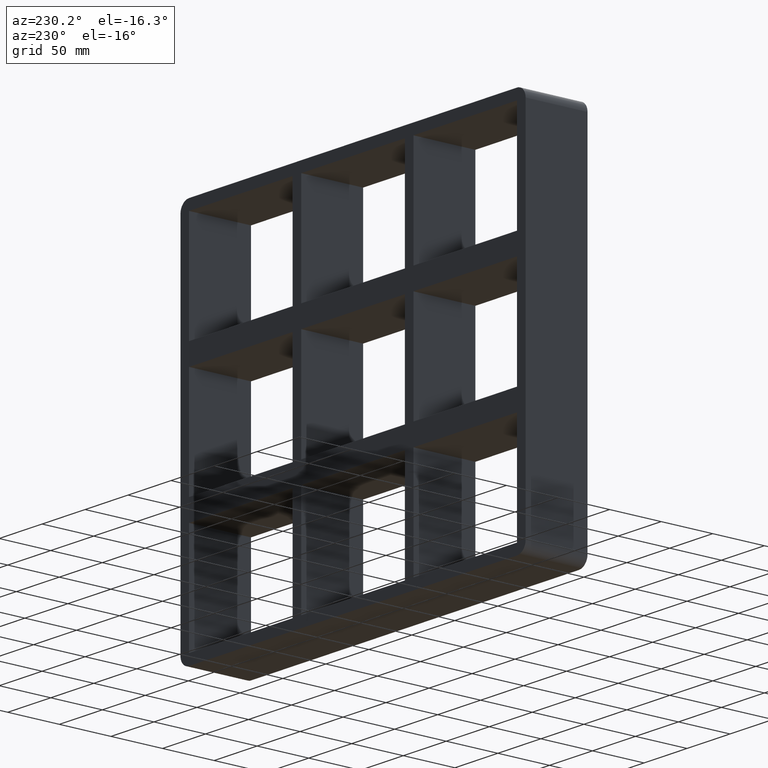
[diagram: clean part render]
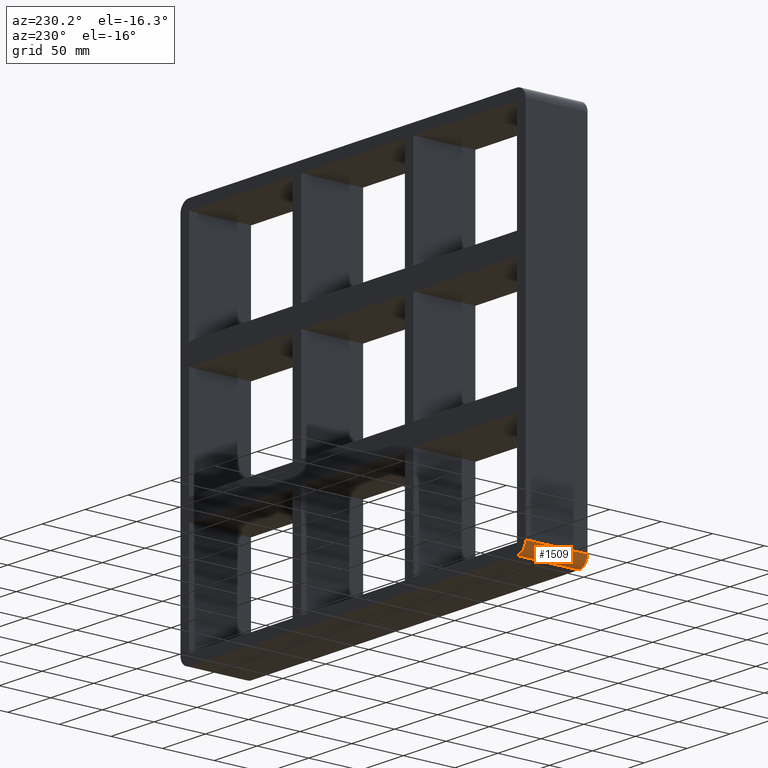
[diagram: same view with one face highlighted and labeled with its STEP entity id]
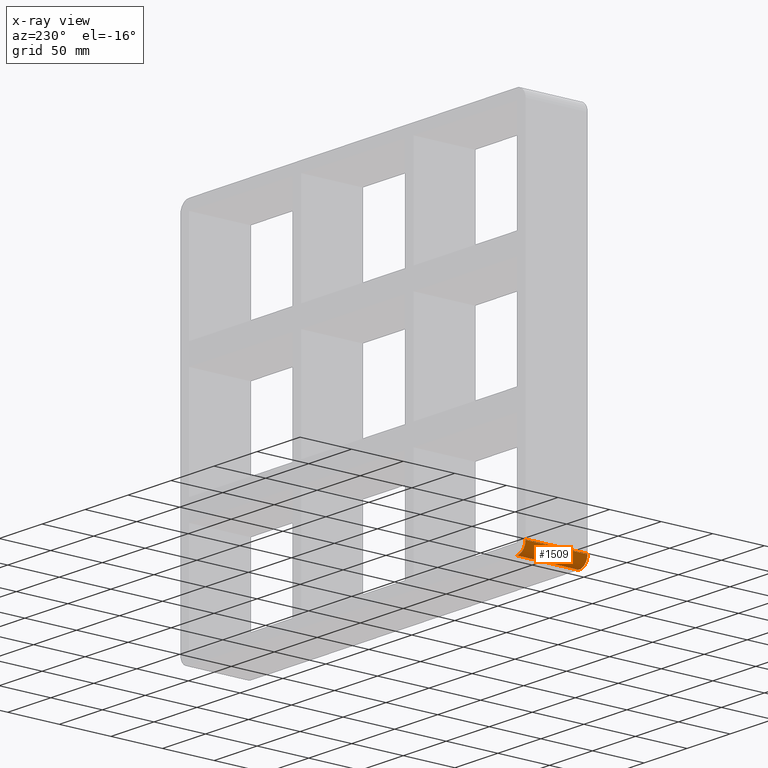
[diagram: x-ray of the same camera — body ghosted, the highlighted face saturated]
A machine part, auxiliary view. The second image highlights one B-rep face of the part: STEP entity #1509.
The next image is the same camera in x-ray: the body ghosted, the highlighted face saturated — about 0% of this face is hidden behind the body in this view.
In plain terms, the highlighted cylindrical surface (edge-blend (fillet) strip) has radius 10 mm, axis along (0, 1, 0).
Its self-contained STEP definition (entity closure, byte-faithful):
#572=CARTESIAN_POINT('',(-190.75000000000006,57.0,-181.50000000000003));
#573=VERTEX_POINT('',#572);
#580=CARTESIAN_POINT('',(-200.75000000000006,57.0,-171.50000000000003));
#581=VERTEX_POINT('',#580);
#582=CARTESIAN_POINT('',(-190.75000000000006,57.0,-171.50000000000003));
#583=DIRECTION('',(0.0,-1.0,0.0));
#584=DIRECTION('',(-0.707106781186547,0.0,-0.707106781186547));
#585=AXIS2_PLACEMENT_3D('',#582,#583,#584);
#586=CIRCLE('',#585,9.999999999999998);
#587=EDGE_CURVE('',#581,#573,#586,.T.);
#1036=CARTESIAN_POINT('',(-200.75000000000006,-3.0,-171.50000000000003));
#1037=VERTEX_POINT('',#1036);
#1044=CARTESIAN_POINT('',(-190.75000000000006,-3.0,-181.50000000000003));
#1045=VERTEX_POINT('',#1044);
#1046=CARTESIAN_POINT('',(-190.75000000000006,-3.0,-171.50000000000003));
#1047=DIRECTION('',(0.0,1.0,0.0));
#1048=DIRECTION('',(-0.707106781186547,0.0,-0.707106781186547));
#1049=AXIS2_PLACEMENT_3D('',#1046,#1047,#1048);
#1050=CIRCLE('',#1049,9.999999999999998);
#1051=EDGE_CURVE('',#1045,#1037,#1050,.T.);
#1488=CARTESIAN_POINT('',(-190.75000000000006,0.0,-171.50000000000003));
#1489=DIRECTION('',(0.0,1.0,0.0));
#1490=DIRECTION('',(-0.707106781186547,0.0,-0.707106781186547));
#1491=AXIS2_PLACEMENT_3D('',#1488,#1489,#1490);
#1492=CYLINDRICAL_SURFACE('',#1491,10.0);
#1493=ORIENTED_EDGE('',*,*,#587,.T.);
#1494=CARTESIAN_POINT('',(-190.75000000000006,57.0,-181.50000000000003));
#1495=DIRECTION('',(0.0,-1.0,0.0));
#1496=VECTOR('',#1495,60.0);
#1497=LINE('',#1494,#1496);
#1498=EDGE_CURVE('',#573,#1045,#1497,.T.);
#1499=ORIENTED_EDGE('',*,*,#1498,.T.);
#1500=ORIENTED_EDGE('',*,*,#1051,.T.);
#1501=CARTESIAN_POINT('',(-200.75000000000006,-3.0,-171.50000000000003));
#1502=DIRECTION('',(0.0,1.0,0.0));
#1503=VECTOR('',#1502,60.0);
#1504=LINE('',#1501,#1503);
#1505=EDGE_CURVE('',#1037,#581,#1504,.T.);
#1506=ORIENTED_EDGE('',*,*,#1505,.T.);
#1507=EDGE_LOOP('',(#1493,#1499,#1500,#1506));
#1508=FACE_OUTER_BOUND('',#1507,.T.);
#1509=ADVANCED_FACE('',(#1508),#1492,.T.);